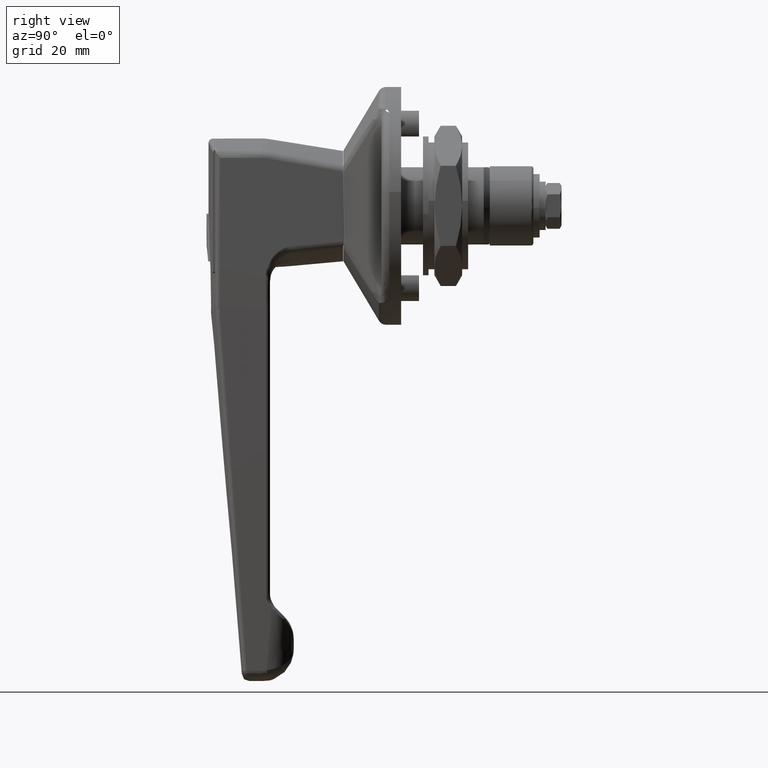
[diagram: clean part render]
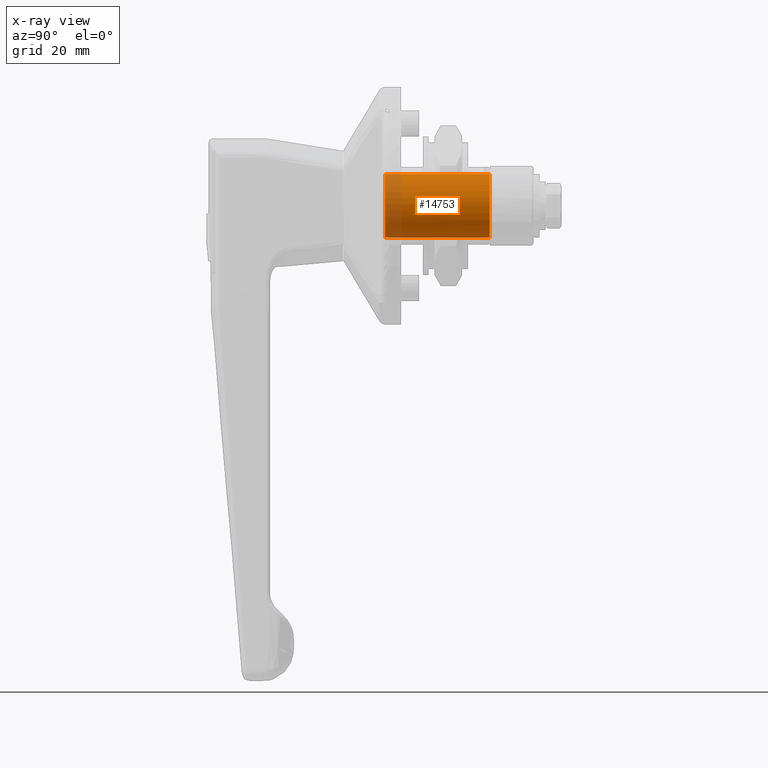
[diagram: x-ray — body ghosted, one internal face saturated and labeled with its STEP entity id]
A machine part, right view, then the same camera in x-ray: the body is ghosted and one INTERNAL B-rep face — a face not visible from any outside direction — is saturated and labeled: STEP entity #14753.
In plain terms, the highlighted face is a freeform B-spline surface patch.
Its self-contained STEP definition (entity closure, byte-faithful):
#14630=CARTESIAN_POINT('',(-4.761250000001135,6.285012620900386,4.949607697093057));
#14631=CARTESIAN_POINT('',(-4.761250000001135,6.143356975104874,5.129482058079175));
#14632=CARTESIAN_POINT('',(-4.761250000001134,5.991645766312015,5.300960385725898));
#14633=CARTESIAN_POINT('',(-4.761250000001134,0.690685380586117,11.292606152037912));
#14634=CARTESIAN_POINT('',(-4.761250000001134,-5.300960385725898,5.991645766312015));
#14635=CARTESIAN_POINT('',(-4.761250000001134,-11.292606152037912,0.690685380586117));
#14636=CARTESIAN_POINT('',(-4.761250000001134,-5.991645766312015,-5.300960385725898));
#14637=CARTESIAN_POINT('',(-4.761250000001134,-0.690685380586117,-11.292606152037912));
#14638=CARTESIAN_POINT('',(-4.761250000001134,5.300960385725898,-5.991645766312015));
#14639=CARTESIAN_POINT('',(23.027781250000036,6.285012620900386,4.949607697093057));
#14640=CARTESIAN_POINT('',(23.027781250000036,6.143356975104874,5.129482058079175));
#14641=CARTESIAN_POINT('',(23.027781250000029,5.991645766312015,5.300960385725898));
#14642=CARTESIAN_POINT('',(23.027781250000036,0.690685380586117,11.292606152037912));
#14643=CARTESIAN_POINT('',(23.027781250000029,-5.300960385725898,5.991645766312015));
#14644=CARTESIAN_POINT('',(23.027781250000036,-11.292606152037912,0.690685380586117));
#14645=CARTESIAN_POINT('',(23.027781250000029,-5.991645766312015,-5.300960385725898));
#14646=CARTESIAN_POINT('',(23.027781250000036,-0.690685380586117,-11.292606152037912));
#14647=CARTESIAN_POINT('',(23.027781250000029,5.300960385725898,-5.991645766312015));
#14655=(BOUNDED_SURFACE()B_SPLINE_SURFACE(2,1,((#14630,#14639),(#14631,#14640),(#14632,#14641),(#14633,#14642),(#14634,#14643),(#14635,#14644),(#14636,#14645),(#14637,#14646),(#14638,#14647)),.UNSPECIFIED.,.F.,.F.,.U.)B_SPLINE_SURFACE_WITH_KNOTS((3,2,2,2,3),(2,2),(0.0,0.530193359837562,13.785027355776601,27.039861351715629,40.294695347654667),(0.0,27.789031250001170),.UNSPECIFIED.)GEOMETRIC_REPRESENTATION_ITEM()RATIONAL_B_SPLINE_SURFACE(((0.977505800795127,0.977505800795127),(0.988284271247462,0.988284271247462),(1.0,1.0),(0.707106781186548,0.707106781186548),(1.0,1.0),(0.707106781186548,0.707106781186548),(1.0,1.0),(0.707106781186548,0.707106781186548),(1.0,1.0)))REPRESENTATION_ITEM('')SURFACE());
#14656=CARTESIAN_POINT('',(-4.100000000000939,6.285019561210540,4.949598884260726));
#14657=VERTEX_POINT('',#14656);
#14658=CARTESIAN_POINT('',(-4.100000000001105,0.0,8.0));
#14659=VERTEX_POINT('',#14658);
#14660=CARTESIAN_POINT('',(-4.100000000000939,6.285019561210540,4.949598884260726));
#14661=CARTESIAN_POINT('',(-4.100000000001105,3.882757832045800,8.0));
#14662=CARTESIAN_POINT('',(-4.100000000001105,0.0,8.0));
#14670=(BOUNDED_CURVE()B_SPLINE_CURVE(2,(#14660,#14661,#14662),.UNSPECIFIED.,.F.,.U.)B_SPLINE_CURVE_WITH_KNOTS((3,3),(0.857127328572376,1.0),.UNSPECIFIED.)CURVE()GEOMETRIC_REPRESENTATION_ITEM()RATIONAL_B_SPLINE_CURVE((0.856547297125474,0.832614253540345,1.0))REPRESENTATION_ITEM(''));
#14671=EDGE_CURVE('',#14657,#14659,#14670,.T.);
#14672=ORIENTED_EDGE('',*,*,#14671,.F.);
#14673=CARTESIAN_POINT('',(22.350000000000001,6.285019477601114,4.949598990428596));
#14674=VERTEX_POINT('',#14673);
#14675=CARTESIAN_POINT('',(-4.100000000000939,6.285019561210540,4.949598884260726));
#14676=CARTESIAN_POINT('',(22.350000000000001,6.285019477601114,4.949598990428596));
#14677=QUASI_UNIFORM_CURVE('',1,(#14675,#14676),.UNSPECIFIED.,.F.,.U.);
#14678=EDGE_CURVE('',#14657,#14674,#14677,.T.);
#14679=ORIENTED_EDGE('',*,*,#14678,.T.);
#14680=CARTESIAN_POINT('',(22.350000000000001,-8.0,0.0));
#14681=VERTEX_POINT('',#14680);
#14682=CARTESIAN_POINT('',(22.349999999999994,6.285019477601114,4.949598990428596));
#14683=CARTESIAN_POINT('',(22.349999999999998,3.882757748560566,8.000000000000002));
#14684=CARTESIAN_POINT('',(22.350000000000001,0.0,8.0));
#14685=CARTESIAN_POINT('',(22.350000000000001,-8.0,8.0));
#14686=CARTESIAN_POINT('',(22.350000000000001,-8.0,0.0));
#14694=(BOUNDED_CURVE()B_SPLINE_CURVE(2,(#14682,#14683,#14684,#14685,#14686),.UNSPECIFIED.,.F.,.U.)B_SPLINE_CURVE_WITH_KNOTS((3,2,3),(0.107127331130151,0.250000000000000,0.500000000000000),.UNSPECIFIED.)CURVE()GEOMETRIC_REPRESENTATION_ITEM()RATIONAL_B_SPLINE_CURVE((0.856547296268552,0.832614256536965,1.0,0.707106781186548,1.0))REPRESENTATION_ITEM(''));
#14695=EDGE_CURVE('',#14674,#14681,#14694,.T.);
#14696=ORIENTED_EDGE('',*,*,#14695,.T.);
#14697=CARTESIAN_POINT('',(22.350000000000001,5.300956051538616,-5.991649600871417));
#14698=VERTEX_POINT('',#14697);
#14699=CARTESIAN_POINT('',(22.350000000000001,-8.0,0.0));
#14700=CARTESIAN_POINT('',(22.350000000000001,-8.0,-8.0));
#14701=CARTESIAN_POINT('',(22.350000000000001,0.0,-8.0));
#14702=CARTESIAN_POINT('',(22.350000000000001,3.030925560748326,-8.000000000000002));
#14703=CARTESIAN_POINT('',(22.349999999999994,5.300956051538616,-5.991649600871417));
#14711=(BOUNDED_CURVE()B_SPLINE_CURVE(2,(#14699,#14700,#14701,#14702,#14703),.UNSPECIFIED.,.F.,.U.)B_SPLINE_CURVE_WITH_KNOTS((3,2,3),(0.500000000000000,0.750000000000000,0.865779778809385),.UNSPECIFIED.)CURVE()GEOMETRIC_REPRESENTATION_ITEM()RATIONAL_B_SPLINE_CURVE((1.0,0.707106781186548,1.0,0.864355551644038,0.854350177107071))REPRESENTATION_ITEM(''));
#14712=EDGE_CURVE('',#14681,#14698,#14711,.T.);
#14713=ORIENTED_EDGE('',*,*,#14712,.T.);
#14714=CARTESIAN_POINT('',(-4.100000000000984,5.300956545040954,-5.991649164258631));
#14715=VERTEX_POINT('',#14714);
#14716=CARTESIAN_POINT('',(-4.100000000000984,5.300956545040954,-5.991649164258631));
#14717=CARTESIAN_POINT('',(22.350000000000001,5.300956051538616,-5.991649600871417));
#14718=QUASI_UNIFORM_CURVE('',1,(#14716,#14717),.UNSPECIFIED.,.F.,.U.);
#14719=EDGE_CURVE('',#14715,#14698,#14718,.T.);
#14720=ORIENTED_EDGE('',*,*,#14719,.F.);
#14721=CARTESIAN_POINT('',(-4.100000000001105,0.0,-8.0));
#14722=VERTEX_POINT('',#14721);
#14723=CARTESIAN_POINT('',(-4.100000000001105,0.0,-8.0));
#14724=CARTESIAN_POINT('',(-4.100000000001105,3.030925937498636,-8.000000000000002));
#14725=CARTESIAN_POINT('',(-4.100000000000984,5.300956545040954,-5.991649164258631));
#14733=(BOUNDED_CURVE()B_SPLINE_CURVE(2,(#14723,#14724,#14725),.UNSPECIFIED.,.F.,.U.)B_SPLINE_CURVE_WITH_KNOTS((3,3),(0.500000000000000,0.615779791248901),.UNSPECIFIED.)CURVE()GEOMETRIC_REPRESENTATION_ITEM()RATIONAL_B_SPLINE_CURVE((1.0,0.864355537070239,0.854350174957094))REPRESENTATION_ITEM(''));
#14734=EDGE_CURVE('',#14722,#14715,#14733,.T.);
#14735=ORIENTED_EDGE('',*,*,#14734,.F.);
#14736=CARTESIAN_POINT('',(-4.100000000001105,0.0,8.0));
#14737=CARTESIAN_POINT('',(-4.100000000001105,-8.0,8.0));
#14738=CARTESIAN_POINT('',(-4.100000000001105,-8.0,0.0));
#14739=CARTESIAN_POINT('',(-4.100000000001105,-8.0,-8.0));
#14740=CARTESIAN_POINT('',(-4.100000000001105,0.0,-8.0));
#14748=(BOUNDED_CURVE()B_SPLINE_CURVE(2,(#14736,#14737,#14738,#14739,#14740),.UNSPECIFIED.,.F.,.U.)B_SPLINE_CURVE_WITH_KNOTS((3,2,3),(0.0,0.250000000000000,0.500000000000000),.UNSPECIFIED.)CURVE()GEOMETRIC_REPRESENTATION_ITEM()RATIONAL_B_SPLINE_CURVE((1.0,0.707106781186548,1.0,0.707106781186548,1.0))REPRESENTATION_ITEM(''));
#14749=EDGE_CURVE('',#14659,#14722,#14748,.T.);
#14750=ORIENTED_EDGE('',*,*,#14749,.F.);
#14751=EDGE_LOOP('',(#14672,#14679,#14696,#14713,#14720,#14735,#14750));
#14752=FACE_OUTER_BOUND('',#14751,.T.);
#14753=ADVANCED_FACE('',(#14752),#14655,.F.);